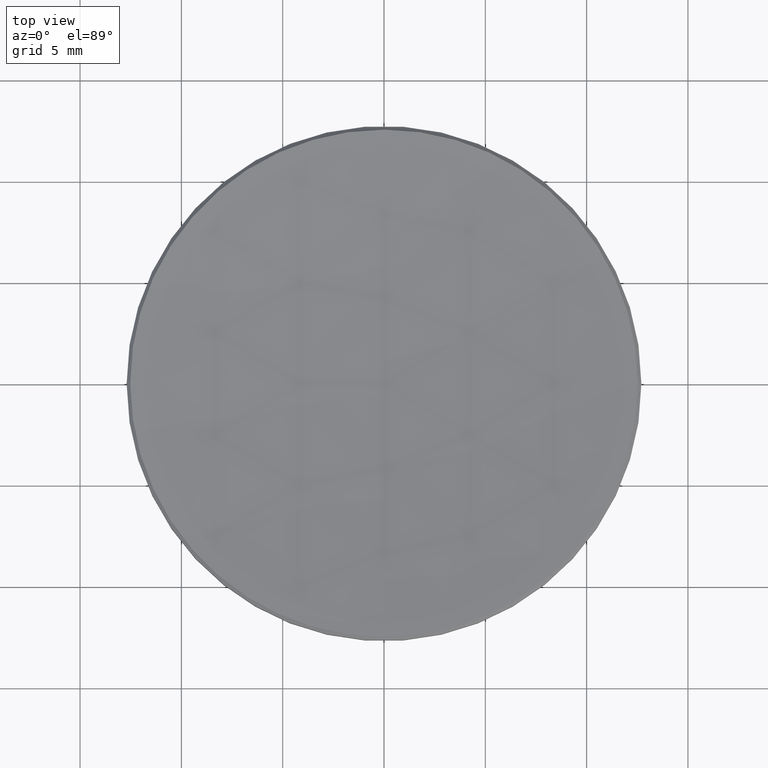
[diagram: clean part render]
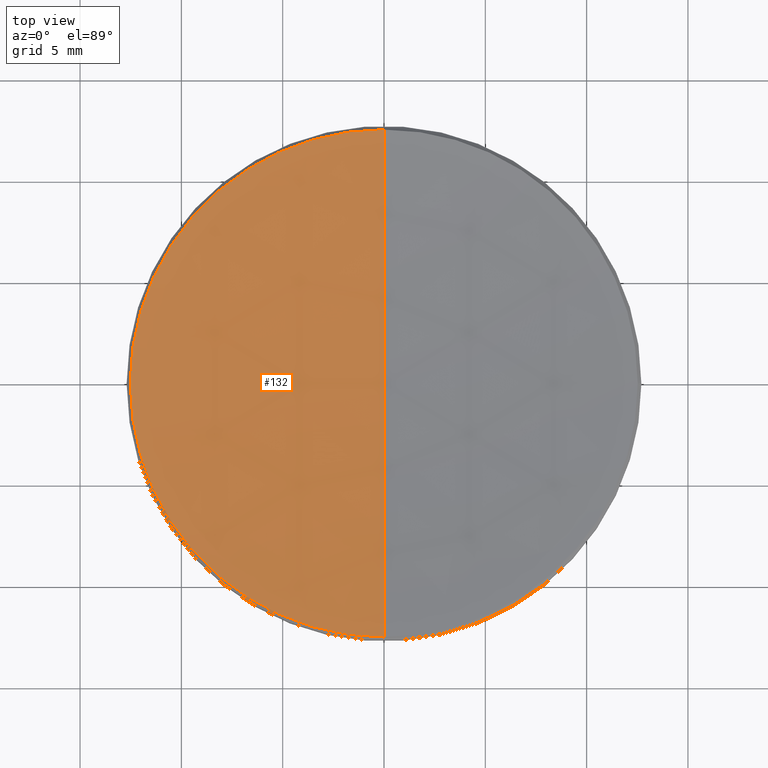
[diagram: same view with one face highlighted and labeled with its STEP entity id]
A machine part, top view. The second image highlights one B-rep face of the part: STEP entity #132.
In plain terms, the highlighted spherical surface has radius 106.9 mm.
Its self-contained STEP definition (entity closure, byte-faithful):
#7 = DIRECTION ( 'NONE',  ( 1.000000000000000000, 0.000000000000000000, 0.000000000000000000 ) ) ;
#9 = EDGE_LOOP ( 'NONE', ( #63, #190, #320, #144 ) ) ;
#20 = DIRECTION ( 'NONE',  ( -1.000000000000000000, 0.000000000000000000, 0.000000000000000000 ) ) ;
#25 = CARTESIAN_POINT ( 'NONE',  ( 0.000000000000000000, 0.000000000000000000, 112.1429225148808655 ) ) ;
#40 = AXIS2_PLACEMENT_3D ( 'NONE', #25, #20, #221 ) ;
#49 = CARTESIAN_POINT ( 'NONE',  ( 0.000000000000000000, 0.000000000000000000, 5.978763596161104310 ) ) ;
#55 = AXIS2_PLACEMENT_3D ( 'NONE', #97, #249, #74 ) ;
#63 = ORIENTED_EDGE ( 'NONE', *, *, #321, .F. ) ;
#73 = EDGE_CURVE ( 'NONE', #145, #118, #181, .T. ) ;
#74 = DIRECTION ( 'NONE',  ( 0.000000000000000000, 0.000000000000000000, -1.000000000000000000 ) ) ;
#81 = VERTEX_POINT ( 'NONE', #226 ) ;
#97 = CARTESIAN_POINT ( 'NONE',  ( 0.000000000000000000, 0.000000000000000000, 112.1429225148808655 ) ) ;
#118 = VERTEX_POINT ( 'NONE', #274 ) ;
#122 = CIRCLE ( 'NONE', #227, 12.52123640383887704 ) ;
#125 = DIRECTION ( 'NONE',  ( 1.000000000000000000, 0.000000000000000000, 0.000000000000000000 ) ) ;
#132 = ADVANCED_FACE ( 'NONE', ( #203 ), #196, .F. ) ;
#140 = EDGE_CURVE ( 'NONE', #81, #145, #273, .T. ) ;
#144 = ORIENTED_EDGE ( 'NONE', *, *, #297, .T. ) ;
#145 = VERTEX_POINT ( 'NONE', #256 ) ;
#158 = CARTESIAN_POINT ( 'NONE',  ( -1.533409208332850696E-15, -12.52123640383880421, 5.978763596161098093 ) ) ;
#161 = DIRECTION ( 'NONE',  ( -1.000000000000000000, 1.224646799147353207E-16, 0.000000000000000000 ) ) ;
#181 = CIRCLE ( 'NONE', #295, 12.52123640383887704 ) ;
#188 = DIRECTION ( 'NONE',  ( -1.224646799147353207E-16, -1.000000000000000000, 0.000000000000000000 ) ) ;
#190 = ORIENTED_EDGE ( 'NONE', *, *, #140, .T. ) ;
#196 = SPHERICAL_SURFACE ( 'NONE', #40, 106.9000000000000057 ) ;
#203 = FACE_OUTER_BOUND ( 'NONE', #9, .T. ) ;
#209 = CARTESIAN_POINT ( 'NONE',  ( 0.000000000000000000, 0.000000000000000000, 5.978763596161104310 ) ) ;
#213 = VERTEX_POINT ( 'NONE', #158 ) ;
#218 = AXIS2_PLACEMENT_3D ( 'NONE', #287, #161, #188 ) ;
#221 = DIRECTION ( 'NONE',  ( 0.000000000000000000, 1.000000000000000000, 0.000000000000000000 ) ) ;
#226 = CARTESIAN_POINT ( 'NONE',  ( 0.000000000000000000, 6.545737141442603608E-15, 5.242922514880857143 ) ) ;
#227 = AXIS2_PLACEMENT_3D ( 'NONE', #209, #291, #7 ) ;
#249 = DIRECTION ( 'NONE',  ( 1.000000000000000000, 0.000000000000000000, 0.000000000000000000 ) ) ;
#254 = DIRECTION ( 'NONE',  ( -0.000000000000000000, -0.000000000000000000, 1.000000000000000000 ) ) ;
#256 = CARTESIAN_POINT ( 'NONE',  ( 0.000000000000000000, 12.52123640383880421, 5.978763596161098093 ) ) ;
#273 = CIRCLE ( 'NONE', #55, 106.9000000000000057 ) ;
#274 = CARTESIAN_POINT ( 'NONE',  ( -12.52123640383887704, 0.000000000000000000, 5.978763596161104310 ) ) ;
#276 = CIRCLE ( 'NONE', #218, 106.9000000000000057 ) ;
#287 = CARTESIAN_POINT ( 'NONE',  ( 0.000000000000000000, 0.000000000000000000, 112.1429225148808655 ) ) ;
#291 = DIRECTION ( 'NONE',  ( -0.000000000000000000, -0.000000000000000000, 1.000000000000000000 ) ) ;
#295 = AXIS2_PLACEMENT_3D ( 'NONE', #49, #254, #125 ) ;
#297 = EDGE_CURVE ( 'NONE', #118, #213, #122, .T. ) ;
#320 = ORIENTED_EDGE ( 'NONE', *, *, #73, .T. ) ;
#321 = EDGE_CURVE ( 'NONE', #81, #213, #276, .T. ) ;